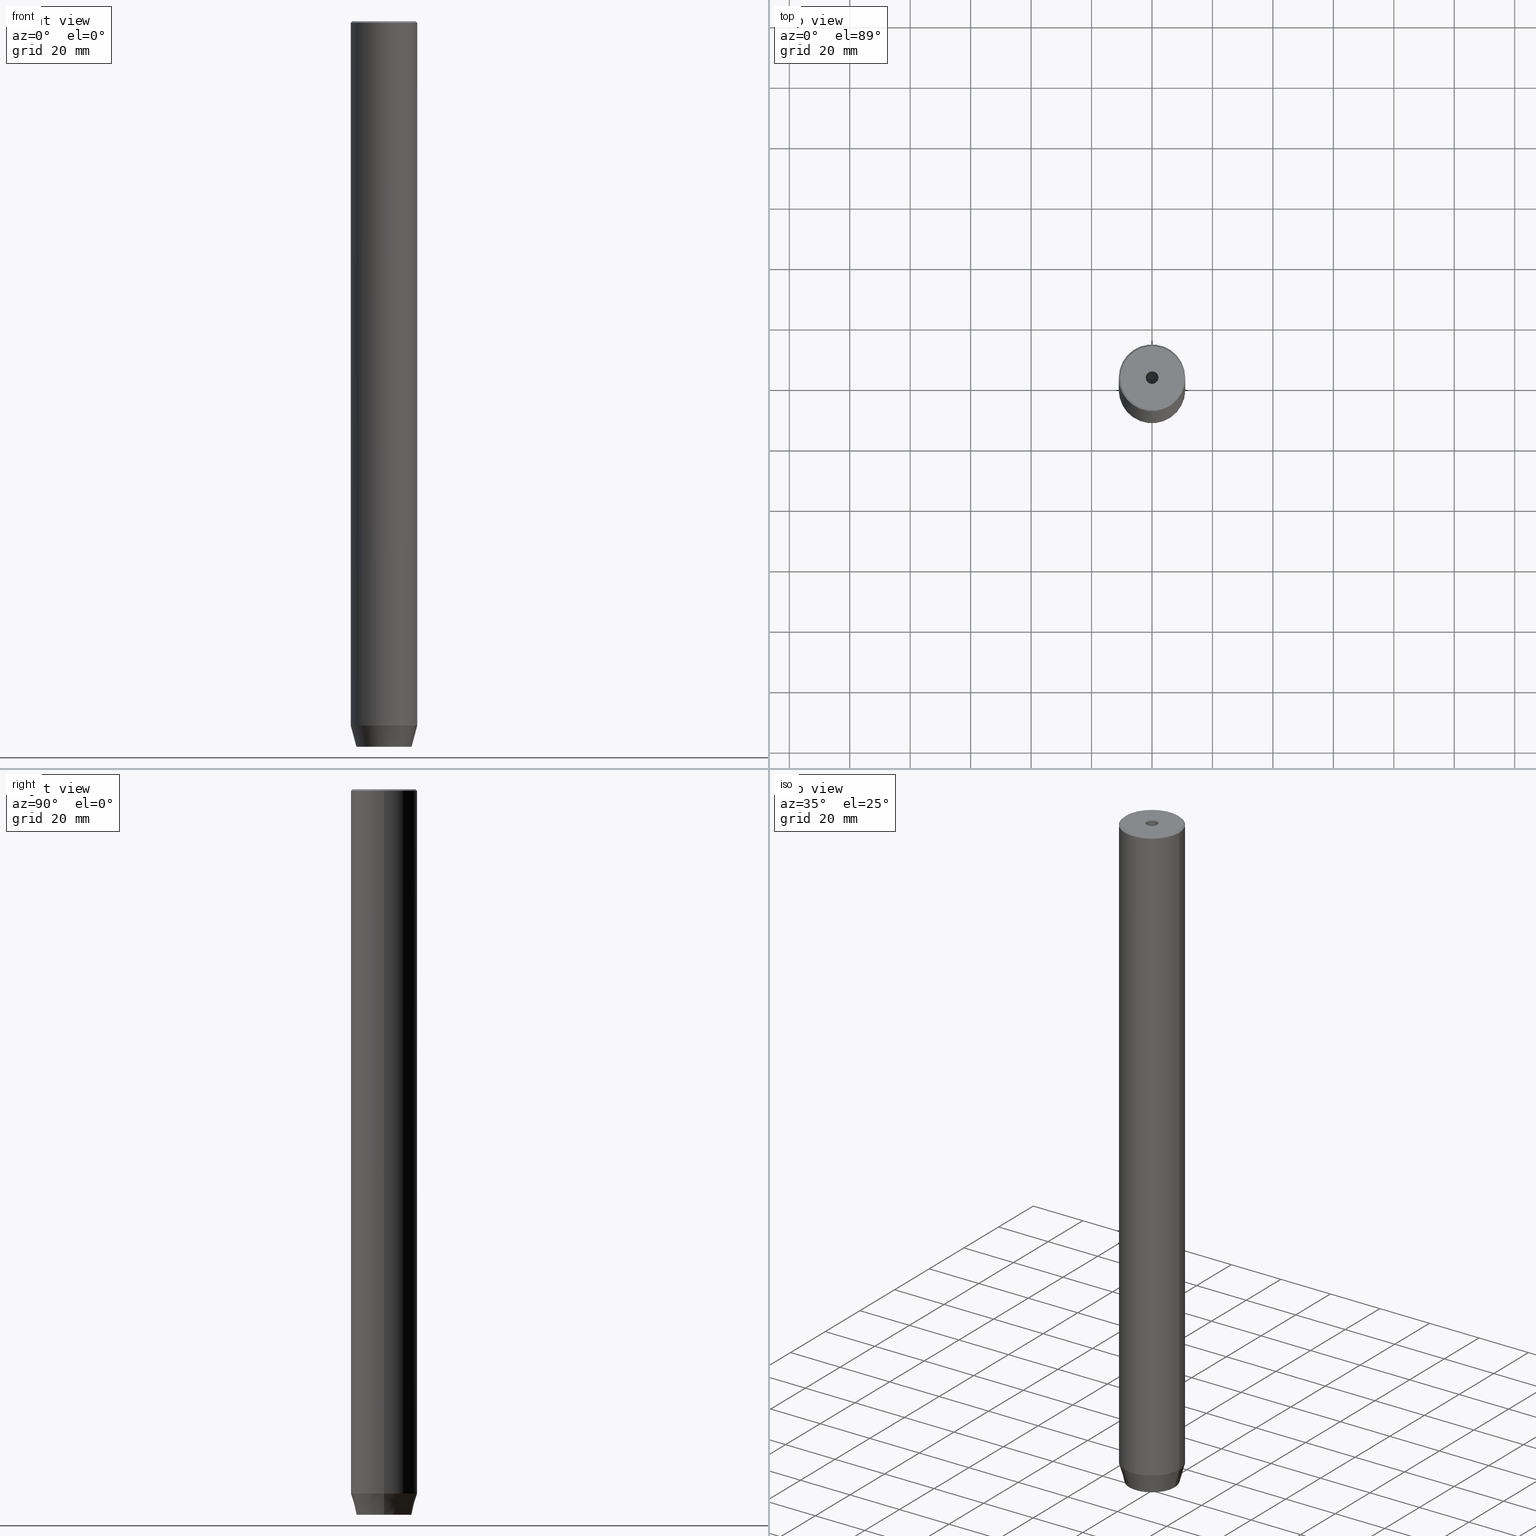
[diagram: canonical four-view strip — front | top / right | iso, engineering-drawing reading convention]
A machine part, canonical four-view strip (front | top / right | iso — engineering-drawing reading convention). The complete STEP part file that produces these views, byte-faithful:
ISO-10303-21;
HEADER;
FILE_DESCRIPTION (( 'STEP AP203' ),
    '1' );
FILE_NAME ('ee39.STEP',
    '2024-01-02T17:17:27',
    ( '' ),
    ( '' ),
    'SwSTEP 2.0',
    'SolidWorks 2019',
    '' );
FILE_SCHEMA (( 'CONFIG_CONTROL_DESIGN' ));
ENDSEC;

DATA;
#1 = FACE_OUTER_BOUND ( 'NONE', #280, .T. ) ;
#2 = CARTESIAN_POINT ( 'NONE',  ( 0.000000000000000000, 0.000000000000000000, -240.0000000000000000 ) ) ;
#3 = LINE ( 'NONE', #312, #234 ) ;
#4 = AXIS2_PLACEMENT_3D ( 'NONE', #414, #127, #131 ) ;
#5 = LINE ( 'NONE', #80, #180 ) ;
#6 = CARTESIAN_POINT ( 'NONE',  ( 0.000000000000000000, 4.618802153517006737, -237.1999999999999886 ) ) ;
#7 = EDGE_CURVE ( 'NONE', #320, #543, #432, .T. ) ;
#8 = EDGE_CURVE ( 'NONE', #197, #468, #38, .T. ) ;
#9 = ADVANCED_FACE ( 'NONE', ( #313 ), #176, .F. ) ;
#10 = LINE ( 'NONE', #188, #330 ) ;
#11 = AXIS2_PLACEMENT_3D ( 'NONE', #2, #362, #126 ) ;
#12 =( GEOMETRIC_REPRESENTATION_CONTEXT ( 3 ) GLOBAL_UNCERTAINTY_ASSIGNED_CONTEXT ( ( #85 ) ) GLOBAL_UNIT_ASSIGNED_CONTEXT ( ( #228, #77, #263 ) ) REPRESENTATION_CONTEXT ( 'NONE', 'WORKASPACE' ) );
#13 = CARTESIAN_POINT ( 'NONE',  ( -2.000000000000000888, -3.464101615137754386, -237.1999999999999886 ) ) ;
#14 = VERTEX_POINT ( 'NONE', #250 ) ;
#15 = CARTESIAN_POINT ( 'NONE',  ( -2.000000000000000000, 3.464101615137754830, -237.1999999999999886 ) ) ;
#16 = VERTEX_POINT ( 'NONE', #208 ) ;
#17 = LINE ( 'NONE', #479, #118 ) ;
#18 = VERTEX_POINT ( 'NONE', #20 ) ;
#19 = CC_DESIGN_PERSON_AND_ORGANIZATION_ASSIGNMENT ( #438, #165, ( #565 ) ) ;
#20 = CARTESIAN_POINT ( 'NONE',  ( -2.099999999999995648, 2.571758278209436040E-16, -25.00000000000000000 ) ) ;
#21 = DIRECTION ( 'NONE',  ( -0.000000000000000000, -0.000000000000000000, 1.000000000000000000 ) ) ;
#22 = ORIENTED_EDGE ( 'NONE', *, *, #441, .T. ) ;
#23 = PERSON_AND_ORGANIZATION_ROLE ( 'creator' ) ;
#24 = CARTESIAN_POINT ( 'NONE',  ( 0.000000000000000000, 0.000000000000000000, 0.000000000000000000 ) ) ;
#25 = ORIENTED_EDGE ( 'NONE', *, *, #461, .F. ) ;
#26 = DIRECTION ( 'NONE',  ( 0.000000000000000000, 0.000000000000000000, -1.000000000000000000 ) ) ;
#27 = ORIENTED_EDGE ( 'NONE', *, *, #86, .F. ) ;
#28 = VECTOR ( 'NONE', #572, 1000.000000000000000 ) ;
#29 = CIRCLE ( 'NONE', #71, 2.099999999999995648 ) ;
#30 = DIRECTION ( 'NONE',  ( 1.000000000000000000, 0.000000000000000000, 0.000000000000000000 ) ) ;
#31 = EDGE_LOOP ( 'NONE', ( #586, #349, #494, #73 ) ) ;
#32 = PLANE ( 'NONE',  #443 ) ;
#33 = ADVANCED_FACE ( 'NONE', ( #293 ), #241, .T. ) ;
#34 = CARTESIAN_POINT ( 'NONE',  ( -2.099999999999996980, 2.571758278209438013E-16, 0.000000000000000000 ) ) ;
#35 = CARTESIAN_POINT ( 'NONE',  ( -10.49999999999998224, 0.000000000000000000, 0.000000000000000000 ) ) ;
#36 = CARTESIAN_POINT ( 'NONE',  ( 4.000000000000000000, -2.309401076758502480, -237.1999999999999886 ) ) ;
#37 = EDGE_CURVE ( 'NONE', #398, #106, #205, .T. ) ;
#38 = CIRCLE ( 'NONE', #11, 9.124355652982133691 ) ;
#39 = EDGE_LOOP ( 'NONE', ( #55, #88 ) ) ;
#40 = VECTOR ( 'NONE', #271, 1000.000000000000000 ) ;
#41 = VECTOR ( 'NONE', #568, 1000.000000000000000 ) ;
#42 = DIRECTION ( 'NONE',  ( 0.000000000000000000, 0.000000000000000000, -1.000000000000000000 ) ) ;
#43 = CARTESIAN_POINT ( 'NONE',  ( 0.000000000000000000, 0.000000000000000000, 0.000000000000000000 ) ) ;
#44 = ORIENTED_EDGE ( 'NONE', *, *, #190, .T. ) ;
#45 = LINE ( 'NONE', #460, #473 ) ;
#46 = ORIENTED_EDGE ( 'NONE', *, *, #360, .T. ) ;
#47 = AXIS2_PLACEMENT_3D ( 'NONE', #87, #277, #465 ) ;
#48 = CARTESIAN_POINT ( 'NONE',  ( 0.000000000000000000, 0.000000000000000000, -237.1999999999999886 ) ) ;
#49 = DIRECTION ( 'NONE',  ( 1.000000000000000000, 0.000000000000000000, 0.000000000000000000 ) ) ;
#50 = CLOSED_SHELL ( 'NONE', ( #255, #491, #373, #58, #33, #487, #369, #314, #350, #244, #282, #128, #9, #189, #421, #501, #384, #139, #89 ) ) ;
#51 = AXIS2_PLACEMENT_3D ( 'NONE', #423, #141, #288 ) ;
#52 = EDGE_LOOP ( 'NONE', ( #446, #396, #46, #254 ) ) ;
#53 = CONICAL_SURFACE ( 'NONE', #119, 10.49999999999998224, 0.7853981633974657095 ) ;
#54 = EDGE_CURVE ( 'NONE', #338, #18, #100, .T. ) ;
#55 = ORIENTED_EDGE ( 'NONE', *, *, #469, .F. ) ;
#56 = FACE_OUTER_BOUND ( 'NONE', #57, .T. ) ;
#57 = EDGE_LOOP ( 'NONE', ( #174, #152, #110 ) ) ;
#58 = ADVANCED_FACE ( 'NONE', ( #481 ), #172, .T. ) ;
#59 = EDGE_CURVE ( 'NONE', #455, #430, #198, .T. ) ;
#60 = ORIENTED_EDGE ( 'NONE', *, *, #516, .T. ) ;
#61 = DIRECTION ( 'NONE',  ( 0.8660254037844384856, -0.5000000000000002220, 0.000000000000000000 ) ) ;
#62 = DIRECTION ( 'NONE',  ( -0.000000000000000000, -0.000000000000000000, 1.000000000000000000 ) ) ;
#63 = VERTEX_POINT ( 'NONE', #336 ) ;
#64 = LINE ( 'NONE', #437, #28 ) ;
#65 = CARTESIAN_POINT ( 'NONE',  ( -6.432287649943602629E-15, 0.000000000000000000, -26.26180729995787999 ) ) ;
#66 = EDGE_LOOP ( 'NONE', ( #143, #97, #184, #301 ) ) ;
#67 = DIRECTION ( 'NONE',  ( -0.000000000000000000, -0.000000000000000000, 1.000000000000000000 ) ) ;
#68 = CARTESIAN_POINT ( 'NONE',  ( 0.000000000000000000, 0.000000000000000000, -232.9999999999999716 ) ) ;
#69 = ORIENTED_EDGE ( 'NONE', *, *, #318, .T. ) ;
#70 = CYLINDRICAL_SURFACE ( 'NONE', #367, 2.099999999999996980 ) ;
#71 = AXIS2_PLACEMENT_3D ( 'NONE', #103, #329, #521 ) ;
#72 = LINE ( 'NONE', #206, #41 ) ;
#73 = ORIENTED_EDGE ( 'NONE', *, *, #283, .F. ) ;
#74 = LINE ( 'NONE', #215, #129 ) ;
#75 = ORIENTED_EDGE ( 'NONE', *, *, #37, .T. ) ;
#76 = CARTESIAN_POINT ( 'NONE',  ( -4.000000000000000000, 0.000000000000000000, -237.1999999999999886 ) ) ;
#77 =( NAMED_UNIT ( * ) PLANE_ANGLE_UNIT ( ) SI_UNIT ( $, .RADIAN. ) );
#78 = ORIENTED_EDGE ( 'NONE', *, *, #239, .F. ) ;
#79 = AXIS2_PLACEMENT_3D ( 'NONE', #68, #351, #30 ) ;
#80 = CARTESIAN_POINT ( 'NONE',  ( 4.000000000000000000, 2.309401076758503368, -237.1999999999999886 ) ) ;
#81 = EDGE_CURVE ( 'NONE', #571, #248, #522, .T. ) ;
#82 = ORIENTED_EDGE ( 'NONE', *, *, #478, .T. ) ;
#83 = CARTESIAN_POINT ( 'NONE',  ( -4.000000000000000000, 2.309401076758503368, -240.0000000000000000 ) ) ;
#84 = PRODUCT_RELATED_PRODUCT_CATEGORY ( 'detail', '', ( #168 ) ) ;
#85 = UNCERTAINTY_MEASURE_WITH_UNIT (LENGTH_MEASURE( 1.000000000000000082E-05 ), #228, 'distance_accuracy_value', 'NONE');
#86 = EDGE_CURVE ( 'NONE', #320, #547, #298, .T. ) ;
#87 = CARTESIAN_POINT ( 'NONE',  ( 0.000000000000000000, 0.000000000000000000, -25.00000000000000000 ) ) ;
#88 = ORIENTED_EDGE ( 'NONE', *, *, #294, .F. ) ;
#89 = ADVANCED_FACE ( 'NONE', ( #409 ), #70, .F. ) ;
#90 = AXIS2_PLACEMENT_3D ( 'NONE', #236, #270, #454 ) ;
#91 = DIRECTION ( 'NONE',  ( 0.000000000000000000, 0.000000000000000000, -1.000000000000000000 ) ) ;
#92 = EDGE_CURVE ( 'NONE', #14, #430, #64, .T. ) ;
#93 = DIRECTION ( 'NONE',  ( -0.8571673007021108903, 1.049727191138616847E-16, 0.5150380749100565980 ) ) ;
#94 = EDGE_CURVE ( 'NONE', #106, #63, #309, .T. ) ;
#95 = VECTOR ( 'NONE', #150, 1000.000000000000000 ) ;
#96 = LINE ( 'NONE', #138, #520 ) ;
#97 = ORIENTED_EDGE ( 'NONE', *, *, #466, .F. ) ;
#98 = CIRCLE ( 'NONE', #444, 2.099999999999998757 ) ;
#99 = APPROVAL_PERSON_ORGANIZATION ( #552, #252, #405 ) ;
#100 = LINE ( 'NONE', #564, #199 ) ;
#101 = LINE ( 'NONE', #291, #279 ) ;
#102 = ORIENTED_EDGE ( 'NONE', *, *, #92, .F. ) ;
#103 = CARTESIAN_POINT ( 'NONE',  ( 0.000000000000000000, 0.000000000000000000, -25.00000000000000000 ) ) ;
#104 = CARTESIAN_POINT ( 'NONE',  ( 0.000000000000000000, 0.000000000000000000, -25.00000000000000000 ) ) ;
#105 = CARTESIAN_POINT ( 'NONE',  ( 4.336808689942017736E-16, -4.618802153517006737, -240.0000000000000000 ) ) ;
#106 = VERTEX_POINT ( 'NONE', #448 ) ;
#107 = CONICAL_SURFACE ( 'NONE', #47, 2.099999999999995648, 1.029744258676651647 ) ;
#108 = PERSON_AND_ORGANIZATION ( #111, #173 ) ;
#109 = CARTESIAN_POINT ( 'NONE',  ( -10.49999999999998224, 0.000000000000000000, 0.000000000000000000 ) ) ;
#110 = ORIENTED_EDGE ( 'NONE', *, *, #213, .T. ) ;
#111 = PERSON ( 'NEUR�EN�', 'NEUR�EN�', 'NEUR�EN�', ('NEUR�EN�'), ('NEUR�EN�'), ('NEUR�EN�') ) ;
#112 = DIRECTION ( 'NONE',  ( -0.000000000000000000, -0.000000000000000000, 1.000000000000000000 ) ) ;
#113 = ORIENTED_EDGE ( 'NONE', *, *, #264, .T. ) ;
#114 = PERSON_AND_ORGANIZATION_ROLE ( 'design_owner' ) ;
#115 = CARTESIAN_POINT ( 'NONE',  ( 0.000000000000000000, 0.000000000000000000, -0.5000000000000004441 ) ) ;
#116 = ORIENTED_EDGE ( 'NONE', *, *, #516, .F. ) ;
#117 = DIRECTION ( 'NONE',  ( -0.000000000000000000, -0.000000000000000000, -1.000000000000000000 ) ) ;
#118 = VECTOR ( 'NONE', #193, 1000.000000000000000 ) ;
#119 = AXIS2_PLACEMENT_3D ( 'NONE', #553, #42, #361 ) ;
#120 = VERTEX_POINT ( 'NONE', #404 ) ;
#121 = LOCAL_TIME ( 18, 17, 27.00000000000000000, #259 ) ;
#122 = COORDINATED_UNIVERSAL_TIME_OFFSET ( 1, 0, .AHEAD. ) ;
#123 = DIRECTION ( 'NONE',  ( -0.8660254037844385966, -0.4999999999999999445, 0.000000000000000000 ) ) ;
#124 = ORIENTED_EDGE ( 'NONE', *, *, #441, .F. ) ;
#125 = CARTESIAN_POINT ( 'NONE',  ( 0.000000000000000000, 0.000000000000000000, 0.000000000000000000 ) ) ;
#126 = DIRECTION ( 'NONE',  ( 1.000000000000000000, 0.000000000000000000, 0.000000000000000000 ) ) ;
#127 = DIRECTION ( 'NONE',  ( 0.000000000000000000, 0.000000000000000000, -1.000000000000000000 ) ) ;
#128 = ADVANCED_FACE ( 'NONE', ( #581 ), #32, .F. ) ;
#129 = VECTOR ( 'NONE', #499, 1000.000000000000000 ) ;
#130 = CC_DESIGN_PERSON_AND_ORGANIZATION_ASSIGNMENT ( #434, #23, ( #462 ) ) ;
#131 = DIRECTION ( 'NONE',  ( -1.000000000000000000, 0.000000000000000000, -0.000000000000000000 ) ) ;
#132 = ORIENTED_EDGE ( 'NONE', *, *, #357, .F. ) ;
#133 = CARTESIAN_POINT ( 'NONE',  ( -4.000000000000000000, -2.309401076758503368, -237.1999999999999886 ) ) ;
#134 = DIRECTION ( 'NONE',  ( 0.2588190451025213501, 0.000000000000000000, 0.9659258262890680902 ) ) ;
#135 = AXIS2_PLACEMENT_3D ( 'NONE', #476, #286, #187 ) ;
#136 = CC_DESIGN_PERSON_AND_ORGANIZATION_ASSIGNMENT ( #391, #155, ( #565 ) ) ;
#137 = CIRCLE ( 'NONE', #322, 9.124355652982133691 ) ;
#138 = CARTESIAN_POINT ( 'NONE',  ( 2.000000000000000888, -3.464101615137754386, -237.1999999999999886 ) ) ;
#139 = ADVANCED_FACE ( 'NONE', ( #56 ), #159, .F. ) ;
#140 = DIRECTION ( 'NONE',  ( 0.5000000000000001110, 0.8660254037844385966, -0.000000000000000000 ) ) ;
#141 = DIRECTION ( 'NONE',  ( -0.000000000000000000, -0.000000000000000000, 1.000000000000000000 ) ) ;
#142 = LINE ( 'NONE', #147, #305 ) ;
#143 = ORIENTED_EDGE ( 'NONE', *, *, #182, .T. ) ;
#144 = AXIS2_PLACEMENT_3D ( 'NONE', #470, #194, #326 ) ;
#145 = VECTOR ( 'NONE', #406, 999.9999999999998863 ) ;
#146 = EDGE_CURVE ( 'NONE', #16, #566, #96, .T. ) ;
#147 = CARTESIAN_POINT ( 'NONE',  ( -11.00000000000000000, 1.347111479062088405E-15, -232.9999999999999716 ) ) ;
#148 = ORIENTED_EDGE ( 'NONE', *, *, #360, .F. ) ;
#149 = EDGE_CURVE ( 'NONE', #535, #287, #101, .T. ) ;
#150 = DIRECTION ( 'NONE',  ( -0.000000000000000000, -0.000000000000000000, -1.000000000000000000 ) ) ;
#151 = DIRECTION ( 'NONE',  ( -1.000000000000000000, 0.000000000000000000, 0.000000000000000000 ) ) ;
#152 = ORIENTED_EDGE ( 'NONE', *, *, #201, .T. ) ;
#153 = CARTESIAN_POINT ( 'NONE',  ( -11.00000000000000000, 1.347111479062088405E-15, -0.5000000000000004441 ) ) ;
#154 = CARTESIAN_POINT ( 'NONE',  ( 0.000000000000000000, 0.000000000000000000, 0.000000000000000000 ) ) ;
#155 = PERSON_AND_ORGANIZATION_ROLE ( 'design_supplier' ) ;
#156 = AXIS2_PLACEMENT_3D ( 'NONE', #567, #381, #61 ) ;
#157 = DIRECTION ( 'NONE',  ( -0.000000000000000000, -0.000000000000000000, 1.000000000000000000 ) ) ;
#158 = ORIENTED_EDGE ( 'NONE', *, *, #59, .F. ) ;
#159 = CONICAL_SURFACE ( 'NONE', #506, 2.099999999999995648, 1.029744258676651647 ) ;
#160 = CONICAL_SURFACE ( 'NONE', #467, 11.00000000000000000, 0.2617993877991500740 ) ;
#161 = PERSON_AND_ORGANIZATION ( #111, #173 ) ;
#162 = EDGE_CURVE ( 'NONE', #197, #248, #142, .T. ) ;
#163 = DIRECTION ( 'NONE',  ( -0.000000000000000000, -0.000000000000000000, 1.000000000000000000 ) ) ;
#164 = EDGE_LOOP ( 'NONE', ( #538, #113, #574, #148 ) ) ;
#165 = PERSON_AND_ORGANIZATION_ROLE ( 'creator' ) ;
#166 = LINE ( 'NONE', #435, #482 ) ;
#167 = EDGE_LOOP ( 'NONE', ( #579, #402, #116, #258 ) ) ;
#168 = PRODUCT ( 'ee39', 'ee39', '', ( #577 ) ) ;
#169 = APPROVAL_ROLE ( '' ) ;
#170 = FACE_OUTER_BOUND ( 'NONE', #31, .T. ) ;
#171 = VERTEX_POINT ( 'NONE', #247 ) ;
#172 = CONICAL_SURFACE ( 'NONE', #51, 11.00000000000000000, 0.2617993877991500740 ) ;
#173 = ORGANIZATION ( 'NEUR�EN�', 'NEUR�EN�', '' ) ;
#174 = ORIENTED_EDGE ( 'NONE', *, *, #54, .F. ) ;
#175 = PLANE ( 'NONE',  #4 ) ;
#176 = PLANE ( 'NONE',  #156 ) ;
#177 = VERTEX_POINT ( 'NONE', #379 ) ;
#178 = LINE ( 'NONE', #36, #523 ) ;
#179 = DATE_TIME_ROLE ( 'classification_date' ) ;
#180 = VECTOR ( 'NONE', #226, 1000.000000000000000 ) ;
#181 = CC_DESIGN_APPROVAL ( #334, ( #565 ) ) ;
#182 = EDGE_CURVE ( 'NONE', #63, #535, #17, .T. ) ;
#183 = PLANE ( 'NONE',  #530 ) ;
#184 = ORIENTED_EDGE ( 'NONE', *, *, #389, .F. ) ;
#185 = CALENDAR_DATE ( 2024, 2, 1 ) ;
#186 = DIRECTION ( 'NONE',  ( 0.000000000000000000, -0.000000000000000000, 1.000000000000000000 ) ) ;
#187 = DIRECTION ( 'NONE',  ( 0.8660254037844384856, 0.5000000000000002220, 0.000000000000000000 ) ) ;
#188 = CARTESIAN_POINT ( 'NONE',  ( 10.49999999999998224, 1.285879139104718661E-15, 0.000000000000000000 ) ) ;
#189 = ADVANCED_FACE ( 'NONE', ( #472 ), #382, .F. ) ;
#190 = EDGE_CURVE ( 'NONE', #566, #287, #374, .T. ) ;
#191 = AXIS2_PLACEMENT_3D ( 'NONE', #24, #578, #151 ) ;
#192 = AXIS2_PLACEMENT_3D ( 'NONE', #257, #261, #503 ) ;
#193 = DIRECTION ( 'NONE',  ( 0.000000000000000000, -1.000000000000000000, 0.000000000000000000 ) ) ;
#194 = DIRECTION ( 'NONE',  ( -0.000000000000000000, -0.000000000000000000, 1.000000000000000000 ) ) ;
#195 = DIRECTION ( 'NONE',  ( -0.8660254037844384856, 0.5000000000000002220, 0.000000000000000000 ) ) ;
#196 = ORIENTED_EDGE ( 'NONE', *, *, #469, .T. ) ;
#197 = VERTEX_POINT ( 'NONE', #561 ) ;
#198 = LINE ( 'NONE', #385, #304 ) ;
#199 = VECTOR ( 'NONE', #93, 1000.000000000000114 ) ;
#200 = VECTOR ( 'NONE', #157, 1000.000000000000000 ) ;
#201 = EDGE_CURVE ( 'NONE', #338, #216, #420, .T. ) ;
#202 = VECTOR ( 'NONE', #117, 1000.000000000000000 ) ;
#203 = EDGE_LOOP ( 'NONE', ( #262, #576, #440, #513 ) ) ;
#204 = SECURITY_CLASSIFICATION ( '', '', #341 ) ;
#205 = LINE ( 'NONE', #339, #95 ) ;
#206 = CARTESIAN_POINT ( 'NONE',  ( 2.000000000000000444, 3.464101615137754386, -237.1999999999999886 ) ) ;
#207 = ORIENTED_EDGE ( 'NONE', *, *, #81, .F. ) ;
#208 = CARTESIAN_POINT ( 'NONE',  ( 4.000000000000000000, -2.309401076758502480, -237.1999999999999886 ) ) ;
#209 = EDGE_CURVE ( 'NONE', #566, #120, #327, .T. ) ;
#210 = PERSON_AND_ORGANIZATION ( #111, #173 ) ;
#211 = CARTESIAN_POINT ( 'NONE',  ( 0.000000000000000000, 0.000000000000000000, -240.0000000000000000 ) ) ;
#212 = ORIENTED_EDGE ( 'NONE', *, *, #550, .T. ) ;
#213 = EDGE_CURVE ( 'NONE', #216, #18, #495, .T. ) ;
#214 = APPROVAL_STATUS ( 'not_yet_approved' ) ;
#215 = CARTESIAN_POINT ( 'NONE',  ( -11.00000000000000000, 1.347111479062088405E-15, 0.000000000000000000 ) ) ;
#216 = VERTEX_POINT ( 'NONE', #570 ) ;
#217 = AXIS2_PLACEMENT_3D ( 'NONE', #223, #584, #358 ) ;
#218 = EDGE_CURVE ( 'NONE', #18, #171, #449, .T. ) ;
#219 = LINE ( 'NONE', #397, #498 ) ;
#220 = ORIENTED_EDGE ( 'NONE', *, *, #7, .T. ) ;
#221 = CARTESIAN_POINT ( 'NONE',  ( -4.000000000000000000, 0.000000000000000000, -237.1999999999999886 ) ) ;
#222 = ORIENTED_EDGE ( 'NONE', *, *, #94, .T. ) ;
#223 = CARTESIAN_POINT ( 'NONE',  ( 0.000000000000000000, 0.000000000000000000, -1.990051048614449116E-16 ) ) ;
#224 = ORIENTED_EDGE ( 'NONE', *, *, #325, .F. ) ;
#225 = AXIS2_PLACEMENT_3D ( 'NONE', #115, #573, #493 ) ;
#226 = DIRECTION ( 'NONE',  ( -0.000000000000000000, -0.000000000000000000, -1.000000000000000000 ) ) ;
#227 = EDGE_LOOP ( 'NONE', ( #525, #569, #290, #132 ) ) ;
#228 =( LENGTH_UNIT ( ) NAMED_UNIT ( * ) SI_UNIT ( .MILLI., .METRE. ) );
#229 = CARTESIAN_POINT ( 'NONE',  ( 2.099999999999998757, 0.000000000000000000, -1.990051048614449116E-16 ) ) ;
#230 = CARTESIAN_POINT ( 'NONE',  ( 0.000000000000000000, 0.000000000000000000, 0.000000000000000000 ) ) ;
#231 = AXIS2_PLACEMENT_3D ( 'NONE', #43, #412, #458 ) ;
#232 = AXIS2_PLACEMENT_3D ( 'NONE', #474, #163, #296 ) ;
#233 = ORIENTED_EDGE ( 'NONE', *, *, #580, .F. ) ;
#234 = VECTOR ( 'NONE', #365, 1000.000000000000000 ) ;
#235 = LINE ( 'NONE', #76, #558 ) ;
#236 = CARTESIAN_POINT ( 'NONE',  ( 0.000000000000000000, 0.000000000000000000, 0.000000000000000000 ) ) ;
#237 = FACE_OUTER_BOUND ( 'NONE', #545, .T. ) ;
#238 = DIRECTION ( 'NONE',  ( -0.000000000000000000, -0.000000000000000000, 1.000000000000000000 ) ) ;
#239 = EDGE_CURVE ( 'NONE', #216, #459, #166, .T. ) ;
#240 = EDGE_LOOP ( 'NONE', ( #60, #328, #519, #407, #383, #364 ) ) ;
#241 = CYLINDRICAL_SURFACE ( 'NONE', #366, 11.00000000000000000 ) ;
#242 = CC_DESIGN_DATE_AND_TIME_ASSIGNMENT ( #496, #303, ( #462 ) ) ;
#243 = DIRECTION ( 'NONE',  ( -0.8660254037844384856, -0.5000000000000002220, 0.000000000000000000 ) ) ;
#244 = ADVANCED_FACE ( 'NONE', ( #170 ), #456, .T. ) ;
#245 = APPROVAL_DATE_TIME ( #442, #334 ) ;
#246 = AXIS2_PLACEMENT_3D ( 'NONE', #390, #527, #123 ) ;
#247 = CARTESIAN_POINT ( 'NONE',  ( -2.099999999999998757, 2.571758278209440478E-16, -1.990051048614449116E-16 ) ) ;
#248 = VERTEX_POINT ( 'NONE', #401 ) ;
#249 = CARTESIAN_POINT ( 'NONE',  ( 4.000000000000000000, -2.309401076758502480, -240.0000000000000000 ) ) ;
#250 = CARTESIAN_POINT ( 'NONE',  ( -4.000000000000000000, -2.309401076758503368, -240.0000000000000000 ) ) ;
#251 = DATE_AND_TIME ( #484, #342 ) ;
#252 = APPROVAL ( #509, 'NEUR�EN�' ) ;
#253 = DIRECTION ( 'NONE',  ( 1.000000000000000000, 0.000000000000000000, 0.000000000000000000 ) ) ;
#254 = ORIENTED_EDGE ( 'NONE', *, *, #283, .T. ) ;
#255 = ADVANCED_FACE ( 'NONE', ( #337 ), #268, .F. ) ;
#256 = CARTESIAN_POINT ( 'NONE',  ( 10.49999999999998224, 1.316495309083403434E-15, 0.000000000000000000 ) ) ;
#257 = CARTESIAN_POINT ( 'NONE',  ( 0.000000000000000000, 0.000000000000000000, 0.000000000000000000 ) ) ;
#258 = ORIENTED_EDGE ( 'NONE', *, *, #59, .T. ) ;
#259 = COORDINATED_UNIVERSAL_TIME_OFFSET ( 1, 0, .AHEAD. ) ;
#260 = VECTOR ( 'NONE', #284, 1000.000000000000000 ) ;
#261 = DIRECTION ( 'NONE',  ( -0.000000000000000000, -0.000000000000000000, 1.000000000000000000 ) ) ;
#262 = ORIENTED_EDGE ( 'NONE', *, *, #149, .T. ) ;
#263 =( NAMED_UNIT ( * ) SI_UNIT ( $, .STERADIAN. ) SOLID_ANGLE_UNIT ( ) );
#264 = EDGE_CURVE ( 'NONE', #248, #547, #74, .T. ) ;
#265 = DIRECTION ( 'NONE',  ( -0.000000000000000000, -0.000000000000000000, 1.000000000000000000 ) ) ;
#266 = ORIENTED_EDGE ( 'NONE', *, *, #213, .F. ) ;
#267 = EDGE_CURVE ( 'NONE', #398, #274, #72, .T. ) ;
#268 = CYLINDRICAL_SURFACE ( 'NONE', #192, 2.099999999999996980 ) ;
#269 = EDGE_LOOP ( 'NONE', ( #25, #102, #124, #486, #500, #475 ) ) ;
#270 = DIRECTION ( 'NONE',  ( 0.000000000000000000, 0.000000000000000000, 1.000000000000000000 ) ) ;
#271 = DIRECTION ( 'NONE',  ( -0.7071067811865597852, 0.000000000000000000, -0.7071067811865352493 ) ) ;
#272 = CALENDAR_DATE ( 2024, 2, 1 ) ;
#273 = CARTESIAN_POINT ( 'NONE',  ( -4.000000000000000000, 2.309401076758503368, -237.1999999999999886 ) ) ;
#274 = VERTEX_POINT ( 'NONE', #354 ) ;
#275 = DIRECTION ( 'NONE',  ( -0.000000000000000000, 0.000000000000000000, -1.000000000000000000 ) ) ;
#276 = CARTESIAN_POINT ( 'NONE',  ( 9.124355652982133691, 0.000000000000000000, -240.0000000000000000 ) ) ;
#277 = DIRECTION ( 'NONE',  ( -0.000000000000000000, -0.000000000000000000, 1.000000000000000000 ) ) ;
#278 = DESIGN_CONTEXT ( 'detailed design', #471, 'design' ) ;
#279 = VECTOR ( 'NONE', #289, 1000.000000000000114 ) ;
#280 = EDGE_LOOP ( 'NONE', ( #311, #585 ) ) ;
#281 = VECTOR ( 'NONE', #452, 1000.000000000000114 ) ;
#282 = ADVANCED_FACE ( 'NONE', ( #544 ), #343, .F. ) ;
#283 = EDGE_CURVE ( 'NONE', #177, #547, #582, .T. ) ;
#284 = DIRECTION ( 'NONE',  ( -0.000000000000000000, -0.000000000000000000, -1.000000000000000000 ) ) ;
#285 = CIRCLE ( 'NONE', #408, 10.49999999999998224 ) ;
#286 = DIRECTION ( 'NONE',  ( 0.5000000000000003331, -0.8660254037844385966, 0.000000000000000000 ) ) ;
#287 = VERTEX_POINT ( 'NONE', #105 ) ;
#288 = DIRECTION ( 'NONE',  ( 1.000000000000000000, 0.000000000000000000, 0.000000000000000000 ) ) ;
#289 = DIRECTION ( 'NONE',  ( -0.8660254037844384856, -0.5000000000000002220, 0.000000000000000000 ) ) ;
#290 = ORIENTED_EDGE ( 'NONE', *, *, #451, .T. ) ;
#291 = CARTESIAN_POINT ( 'NONE',  ( 2.000000000000000888, -3.464101615137754386, -240.0000000000000000 ) ) ;
#292 = ORIENTED_EDGE ( 'NONE', *, *, #162, .T. ) ;
#293 = FACE_OUTER_BOUND ( 'NONE', #164, .T. ) ;
#294 = EDGE_CURVE ( 'NONE', #171, #459, #98, .T. ) ;
#295 = CIRCLE ( 'NONE', #79, 11.00000000000000000 ) ;
#296 = DIRECTION ( 'NONE',  ( 1.000000000000000000, 0.000000000000000000, 0.000000000000000000 ) ) ;
#297 = ORIENTED_EDGE ( 'NONE', *, *, #478, .F. ) ;
#298 = LINE ( 'NONE', #35, #40 ) ;
#299 = PERSON_AND_ORGANIZATION_ROLE ( 'classification_officer' ) ;
#300 = DIRECTION ( 'NONE',  ( 1.000000000000000000, 0.000000000000000000, 0.000000000000000000 ) ) ;
#301 = ORIENTED_EDGE ( 'NONE', *, *, #418, .T. ) ;
#302 = DIRECTION ( 'NONE',  ( 1.000000000000000000, 0.000000000000000000, 0.000000000000000000 ) ) ;
#303 = DATE_TIME_ROLE ( 'creation_date' ) ;
#304 = VECTOR ( 'NONE', #526, 1000.000000000000000 ) ;
#305 = VECTOR ( 'NONE', #378, 1000.000000000000000 ) ;
#306 = FACE_OUTER_BOUND ( 'NONE', #335, .T. ) ;
#307 = AXIS2_PLACEMENT_3D ( 'NONE', #537, #26, #300 ) ;
#308 = LOCAL_TIME ( 18, 17, 27.00000000000000000, #464 ) ;
#309 = LINE ( 'NONE', #346, #422 ) ;
#310 = DIRECTION ( 'NONE',  ( 1.000000000000000000, 0.000000000000000000, 0.000000000000000000 ) ) ;
#311 = ORIENTED_EDGE ( 'NONE', *, *, #318, .F. ) ;
#312 = CARTESIAN_POINT ( 'NONE',  ( 4.000000000000000000, 0.000000000000000000, -237.1999999999999886 ) ) ;
#313 = FACE_OUTER_BOUND ( 'NONE', #554, .T. ) ;
#314 = ADVANCED_FACE ( 'NONE', ( #485 ), #439, .T. ) ;
#315 = DIRECTION ( 'NONE',  ( 1.000000000000000000, 0.000000000000000000, 0.000000000000000000 ) ) ;
#316 = EDGE_LOOP ( 'NONE', ( #388, #158, #359, #426 ) ) ;
#317 = CARTESIAN_POINT ( 'NONE',  ( 4.000000000000000000, 0.000000000000000000, -237.1999999999999886 ) ) ;
#318 = EDGE_CURVE ( 'NONE', #468, #197, #137, .T. ) ;
#319 = DIRECTION ( 'NONE',  ( 1.000000000000000000, 0.000000000000000000, 0.000000000000000000 ) ) ;
#320 = VERTEX_POINT ( 'NONE', #109 ) ;
#321 = PLANE ( 'NONE',  #483 ) ;
#322 = AXIS2_PLACEMENT_3D ( 'NONE', #211, #392, #534 ) ;
#323 = LOCAL_TIME ( 18, 17, 27.00000000000000000, #122 ) ;
#324 = DIRECTION ( 'NONE',  ( -0.8660254037844385966, 0.5000000000000001110, 0.000000000000000000 ) ) ;
#325 = EDGE_CURVE ( 'NONE', #547, #177, #416, .T. ) ;
#326 = DIRECTION ( 'NONE',  ( 1.000000000000000000, 0.000000000000000000, 0.000000000000000000 ) ) ;
#327 = LINE ( 'NONE', #13, #415 ) ;
#328 = ORIENTED_EDGE ( 'NONE', *, *, #267, .T. ) ;
#329 = DIRECTION ( 'NONE',  ( -0.000000000000000000, -0.000000000000000000, 1.000000000000000000 ) ) ;
#330 = VECTOR ( 'NONE', #492, 1000.000000000000000 ) ;
#331 = CIRCLE ( 'NONE', #217, 2.099999999999998757 ) ;
#332 = APPROVAL_PERSON_ORGANIZATION ( #210, #334, #347 ) ;
#333 = DIRECTION ( 'NONE',  ( 0.000000000000000000, 0.000000000000000000, 1.000000000000000000 ) ) ;
#334 = APPROVAL ( #214, 'NEUR�EN�' ) ;
#335 = EDGE_LOOP ( 'NONE', ( #220, #82 ) ) ;
#336 = CARTESIAN_POINT ( 'NONE',  ( 4.000000000000000000, 2.309401076758503368, -240.0000000000000000 ) ) ;
#337 = FACE_OUTER_BOUND ( 'NONE', #453, .T. ) ;
#338 = VERTEX_POINT ( 'NONE', #65 ) ;
#339 = CARTESIAN_POINT ( 'NONE',  ( 0.000000000000000000, 4.618802153517006737, -237.1999999999999886 ) ) ;
#340 = APPLICATION_CONTEXT ( 'configuration controlled 3d designs of mechanical parts and assemblies' ) ;
#341 = SECURITY_CLASSIFICATION_LEVEL ( 'unclassified' ) ;
#342 = LOCAL_TIME ( 18, 17, 27.00000000000000000, #353 ) ;
#343 = PLANE ( 'NONE',  #246 ) ;
#344 = EDGE_LOOP ( 'NONE', ( #297, #371, #224, #27 ) ) ;
#345 = PRODUCT_DEFINITION_SHAPE ( 'NONE', 'NONE',  #462 ) ;
#346 = CARTESIAN_POINT ( 'NONE',  ( 2.000000000000000444, 3.464101615137754386, -240.0000000000000000 ) ) ;
#347 = APPROVAL_ROLE ( '' ) ;
#348 = CARTESIAN_POINT ( 'NONE',  ( 0.000000000000000000, 0.000000000000000000, -232.9999999999999716 ) ) ;
#349 = ORIENTED_EDGE ( 'NONE', *, *, #7, .F. ) ;
#350 = ADVANCED_FACE ( 'NONE', ( #395 ), #160, .T. ) ;
#351 = DIRECTION ( 'NONE',  ( -0.000000000000000000, -0.000000000000000000, 1.000000000000000000 ) ) ;
#352 = ORIENTED_EDGE ( 'NONE', *, *, #209, .F. ) ;
#353 = COORDINATED_UNIVERSAL_TIME_OFFSET ( 1, 0, .AHEAD. ) ;
#354 = CARTESIAN_POINT ( 'NONE',  ( 4.000000000000000000, 2.309401076758503368, -237.1999999999999886 ) ) ;
#355 = EDGE_LOOP ( 'NONE', ( #69, #292, #207, #490 ) ) ;
#356 = COORDINATED_UNIVERSAL_TIME_OFFSET ( 1, 0, .AHEAD. ) ;
#357 = EDGE_CURVE ( 'NONE', #248, #571, #295, .T. ) ;
#358 = DIRECTION ( 'NONE',  ( 1.000000000000000000, 0.000000000000000000, 0.000000000000000000 ) ) ;
#359 = ORIENTED_EDGE ( 'NONE', *, *, #429, .F. ) ;
#360 = EDGE_CURVE ( 'NONE', #571, #177, #219, .T. ) ;
#361 = DIRECTION ( 'NONE',  ( -1.000000000000000000, 0.000000000000000000, 0.000000000000000000 ) ) ;
#362 = DIRECTION ( 'NONE',  ( -0.000000000000000000, -0.000000000000000000, 1.000000000000000000 ) ) ;
#363 = LINE ( 'NONE', #133, #202 ) ;
#364 = ORIENTED_EDGE ( 'NONE', *, *, #429, .T. ) ;
#365 = DIRECTION ( 'NONE',  ( 0.000000000000000000, -1.000000000000000000, 0.000000000000000000 ) ) ;
#366 = AXIS2_PLACEMENT_3D ( 'NONE', #154, #238, #49 ) ;
#367 = AXIS2_PLACEMENT_3D ( 'NONE', #400, #67, #529 ) ;
#368 = AXIS2_PLACEMENT_3D ( 'NONE', #125, #186, #315 ) ;
#369 = ADVANCED_FACE ( 'NONE', ( #540, #306 ), #457, .T. ) ;
#370 = FACE_BOUND ( 'NONE', #269, .T. ) ;
#371 = ORIENTED_EDGE ( 'NONE', *, *, #532, .T. ) ;
#372 = DIRECTION ( 'NONE',  ( 0.000000000000000000, 1.000000000000000000, 0.000000000000000000 ) ) ;
#373 = ADVANCED_FACE ( 'NONE', ( #514 ), #53, .T. ) ;
#374 = LINE ( 'NONE', #557, #260 ) ;
#375 = VECTOR ( 'NONE', #425, 1000.000000000000114 ) ;
#376 = AXIS2_PLACEMENT_3D ( 'NONE', #377, #140, #324 ) ;
#377 = CARTESIAN_POINT ( 'NONE',  ( 2.000000000000000444, 3.464101615137754386, -237.1999999999999886 ) ) ;
#378 = DIRECTION ( 'NONE',  ( -0.2588190451025213501, 3.169619151431772337E-17, 0.9659258262890680902 ) ) ;
#379 = CARTESIAN_POINT ( 'NONE',  ( 11.00000000000000000, 0.000000000000000000, -0.5000000000000004441 ) ) ;
#380 = ORIENTED_EDGE ( 'NONE', *, *, #218, .F. ) ;
#381 = DIRECTION ( 'NONE',  ( -0.5000000000000003331, -0.8660254037844385966, 0.000000000000000000 ) ) ;
#382 = PLANE ( 'NONE',  #135 ) ;
#383 = ORIENTED_EDGE ( 'NONE', *, *, #209, .T. ) ;
#384 = ADVANCED_FACE ( 'NONE', ( #419 ), #321, .T. ) ;
#385 = CARTESIAN_POINT ( 'NONE',  ( -4.000000000000000000, 2.309401076758503368, -237.1999999999999886 ) ) ;
#386 = VECTOR ( 'NONE', #563, 999.9999999999998863 ) ;
#387 = CC_DESIGN_DATE_AND_TIME_ASSIGNMENT ( #450, #179, ( #204 ) ) ;
#388 = ORIENTED_EDGE ( 'NONE', *, *, #92, .T. ) ;
#389 = EDGE_CURVE ( 'NONE', #274, #16, #3, .T. ) ;
#390 = CARTESIAN_POINT ( 'NONE',  ( -2.000000000000000000, 3.464101615137754830, -237.1999999999999886 ) ) ;
#391 = PERSON_AND_ORGANIZATION ( #111, #173 ) ;
#392 = DIRECTION ( 'NONE',  ( -0.000000000000000000, -0.000000000000000000, 1.000000000000000000 ) ) ;
#393 = EDGE_LOOP ( 'NONE', ( #480, #528, #212 ) ) ;
#394 = APPROVAL_DATE_TIME ( #251, #497 ) ;
#395 = FACE_OUTER_BOUND ( 'NONE', #227, .T. ) ;
#396 = ORIENTED_EDGE ( 'NONE', *, *, #357, .T. ) ;
#397 = CARTESIAN_POINT ( 'NONE',  ( 11.00000000000000000, 0.000000000000000000, 0.000000000000000000 ) ) ;
#398 = VERTEX_POINT ( 'NONE', #6 ) ;
#399 = APPLICATION_PROTOCOL_DEFINITION ( 'international standard', 'config_control_design', 1994, #340 ) ;
#400 = CARTESIAN_POINT ( 'NONE',  ( 0.000000000000000000, 0.000000000000000000, 0.000000000000000000 ) ) ;
#401 = CARTESIAN_POINT ( 'NONE',  ( -11.00000000000000000, 1.347111479062088405E-15, -232.9999999999999716 ) ) ;
#402 = ORIENTED_EDGE ( 'NONE', *, *, #37, .F. ) ;
#403 = CARTESIAN_POINT ( 'NONE',  ( 4.336808689942017736E-16, -4.618802153517006737, -237.1999999999999886 ) ) ;
#404 = CARTESIAN_POINT ( 'NONE',  ( -4.000000000000000000, -2.309401076758503368, -237.1999999999999886 ) ) ;
#405 = APPROVAL_ROLE ( '' ) ;
#406 = DIRECTION ( 'NONE',  ( 0.8660254037844387076, 0.5000000000000001110, 0.000000000000000000 ) ) ;
#407 = ORIENTED_EDGE ( 'NONE', *, *, #146, .T. ) ;
#408 = AXIS2_PLACEMENT_3D ( 'NONE', #230, #546, #319 ) ;
#409 = FACE_OUTER_BOUND ( 'NONE', #417, .T. ) ;
#410 = DATE_AND_TIME ( #272, #583 ) ;
#411 = CARTESIAN_POINT ( 'NONE',  ( -2.000000000000000000, 3.464101615137754830, -240.0000000000000000 ) ) ;
#412 = DIRECTION ( 'NONE',  ( -0.000000000000000000, -0.000000000000000000, 1.000000000000000000 ) ) ;
#413 = FACE_OUTER_BOUND ( 'NONE', #66, .T. ) ;
#414 = CARTESIAN_POINT ( 'NONE',  ( 0.000000000000000000, 9.124355652982133691, -240.0000000000000000 ) ) ;
#415 = VECTOR ( 'NONE', #195, 1000.000000000000114 ) ;
#416 = CIRCLE ( 'NONE', #307, 11.00000000000000000 ) ;
#417 = EDGE_LOOP ( 'NONE', ( #380, #266, #562, #196 ) ) ;
#418 = EDGE_CURVE ( 'NONE', #274, #63, #5, .T. ) ;
#419 = FACE_OUTER_BOUND ( 'NONE', #240, .T. ) ;
#420 = LINE ( 'NONE', #560, #375 ) ;
#421 = ADVANCED_FACE ( 'NONE', ( #413 ), #183, .F. ) ;
#422 = VECTOR ( 'NONE', #539, 1000.000000000000000 ) ;
#423 = CARTESIAN_POINT ( 'NONE',  ( 0.000000000000000000, 0.000000000000000000, -232.9999999999999716 ) ) ;
#424 = CC_DESIGN_APPROVAL ( #497, ( #462 ) ) ;
#425 = DIRECTION ( 'NONE',  ( 0.8571673007021108903, 0.000000000000000000, 0.5150380749100565980 ) ) ;
#426 = ORIENTED_EDGE ( 'NONE', *, *, #580, .T. ) ;
#427 = PERSON_AND_ORGANIZATION ( #111, #173 ) ;
#428 = CC_DESIGN_PERSON_AND_ORGANIZATION_ASSIGNMENT ( #427, #114, ( #168 ) ) ;
#429 = EDGE_CURVE ( 'NONE', #120, #455, #235, .T. ) ;
#430 = VERTEX_POINT ( 'NONE', #83 ) ;
#431 = ADVANCED_BREP_SHAPE_REPRESENTATION ( 'ee39', ( #533, #90 ), #12 ) ;
#432 = CIRCLE ( 'NONE', #231, 10.49999999999998224 ) ;
#433 = DIRECTION ( 'NONE',  ( -1.000000000000000000, 0.000000000000000000, 0.000000000000000000 ) ) ;
#434 = PERSON_AND_ORGANIZATION ( #111, #173 ) ;
#435 = CARTESIAN_POINT ( 'NONE',  ( 2.099999999999996980, 0.000000000000000000, 0.000000000000000000 ) ) ;
#436 = ORIENTED_EDGE ( 'NONE', *, *, #418, .F. ) ;
#437 = CARTESIAN_POINT ( 'NONE',  ( -4.000000000000000000, 0.000000000000000000, -240.0000000000000000 ) ) ;
#438 = PERSON_AND_ORGANIZATION ( #111, #173 ) ;
#439 = CYLINDRICAL_SURFACE ( 'NONE', #508, 11.00000000000000000 ) ;
#440 = ORIENTED_EDGE ( 'NONE', *, *, #146, .F. ) ;
#441 = EDGE_CURVE ( 'NONE', #287, #14, #549, .T. ) ;
#442 = DATE_AND_TIME ( #502, #121 ) ;
#443 = AXIS2_PLACEMENT_3D ( 'NONE', #221, #433, #333 ) ;
#444 = AXIS2_PLACEMENT_3D ( 'NONE', #489, #265, #310 ) ;
#445 = CARTESIAN_POINT ( 'NONE',  ( 0.000000000000000000, 0.000000000000000000, 0.000000000000000000 ) ) ;
#446 = ORIENTED_EDGE ( 'NONE', *, *, #264, .F. ) ;
#447 = CC_DESIGN_SECURITY_CLASSIFICATION ( #204, ( #565 ) ) ;
#448 = CARTESIAN_POINT ( 'NONE',  ( 2.168404344971008868E-16, 4.618802153517006737, -240.0000000000000000 ) ) ;
#449 = LINE ( 'NONE', #34, #200 ) ;
#450 = DATE_AND_TIME ( #185, #308 ) ;
#451 = EDGE_CURVE ( 'NONE', #468, #571, #45, .T. ) ;
#452 = DIRECTION ( 'NONE',  ( -0.8660254037844384856, 0.5000000000000002220, 0.000000000000000000 ) ) ;
#453 = EDGE_LOOP ( 'NONE', ( #477, #541, #504, #78 ) ) ;
#454 = DIRECTION ( 'NONE',  ( 1.000000000000000000, 0.000000000000000000, 0.000000000000000000 ) ) ;
#455 = VERTEX_POINT ( 'NONE', #273 ) ;
#456 = CONICAL_SURFACE ( 'NONE', #191, 10.49999999999998224, 0.7853981633974657095 ) ;
#457 = PLANE ( 'NONE',  #368 ) ;
#458 = DIRECTION ( 'NONE',  ( 1.000000000000000000, 0.000000000000000000, 0.000000000000000000 ) ) ;
#459 = VERTEX_POINT ( 'NONE', #229 ) ;
#460 = CARTESIAN_POINT ( 'NONE',  ( 11.00000000000000000, 0.000000000000000000, -232.9999999999999716 ) ) ;
#461 = EDGE_CURVE ( 'NONE', #430, #106, #463, .T. ) ;
#462 = PRODUCT_DEFINITION ( 'NEZN�M�', '', #565, #278 ) ;
#463 = LINE ( 'NONE', #411, #145 ) ;
#464 = COORDINATED_UNIVERSAL_TIME_OFFSET ( 1, 0, .AHEAD. ) ;
#465 = DIRECTION ( 'NONE',  ( 1.000000000000000000, 0.000000000000000000, 0.000000000000000000 ) ) ;
#466 = EDGE_CURVE ( 'NONE', #16, #535, #178, .T. ) ;
#467 = AXIS2_PLACEMENT_3D ( 'NONE', #348, #112, #302 ) ;
#468 = VERTEX_POINT ( 'NONE', #276 ) ;
#469 = EDGE_CURVE ( 'NONE', #459, #171, #331, .T. ) ;
#470 = CARTESIAN_POINT ( 'NONE',  ( 0.000000000000000000, 0.000000000000000000, -232.9999999999999716 ) ) ;
#471 = APPLICATION_CONTEXT ( 'configuration controlled 3d designs of mechanical parts and assemblies' ) ;
#472 = FACE_OUTER_BOUND ( 'NONE', #203, .T. ) ;
#473 = VECTOR ( 'NONE', #134, 1000.000000000000000 ) ;
#474 = CARTESIAN_POINT ( 'NONE',  ( 0.000000000000000000, 0.000000000000000000, -25.00000000000000000 ) ) ;
#475 = ORIENTED_EDGE ( 'NONE', *, *, #94, .F. ) ;
#476 = CARTESIAN_POINT ( 'NONE',  ( 2.000000000000000888, -3.464101615137754386, -237.1999999999999886 ) ) ;
#477 = ORIENTED_EDGE ( 'NONE', *, *, #550, .F. ) ;
#478 = EDGE_CURVE ( 'NONE', #543, #320, #285, .T. ) ;
#479 = CARTESIAN_POINT ( 'NONE',  ( 4.000000000000000000, 0.000000000000000000, -240.0000000000000000 ) ) ;
#480 = ORIENTED_EDGE ( 'NONE', *, *, #201, .F. ) ;
#481 = FACE_OUTER_BOUND ( 'NONE', #355, .T. ) ;
#482 = VECTOR ( 'NONE', #21, 1000.000000000000000 ) ;
#483 = AXIS2_PLACEMENT_3D ( 'NONE', #48, #91, #507 ) ;
#484 = CALENDAR_DATE ( 2024, 2, 1 ) ;
#485 = FACE_OUTER_BOUND ( 'NONE', #52, .T. ) ;
#486 = ORIENTED_EDGE ( 'NONE', *, *, #149, .F. ) ;
#487 = ADVANCED_FACE ( 'NONE', ( #370, #1 ), #175, .T. ) ;
#488 = APPROVAL_STATUS ( 'not_yet_approved' ) ;
#489 = CARTESIAN_POINT ( 'NONE',  ( 0.000000000000000000, 0.000000000000000000, -1.990051048614449116E-16 ) ) ;
#490 = ORIENTED_EDGE ( 'NONE', *, *, #451, .F. ) ;
#491 = ADVANCED_FACE ( 'NONE', ( #512 ), #107, .F. ) ;
#492 = DIRECTION ( 'NONE',  ( 0.7071067811865597852, 8.659560562355083235E-17, -0.7071067811865352493 ) ) ;
#493 = DIRECTION ( 'NONE',  ( 1.000000000000000000, 0.000000000000000000, 0.000000000000000000 ) ) ;
#494 = ORIENTED_EDGE ( 'NONE', *, *, #86, .T. ) ;
#495 = CIRCLE ( 'NONE', #232, 2.099999999999995648 ) ;
#496 = DATE_AND_TIME ( #531, #323 ) ;
#497 = APPROVAL ( #488, 'NEUR�EN�' ) ;
#498 = VECTOR ( 'NONE', #575, 1000.000000000000000 ) ;
#499 = DIRECTION ( 'NONE',  ( -0.000000000000000000, -0.000000000000000000, 1.000000000000000000 ) ) ;
#500 = ORIENTED_EDGE ( 'NONE', *, *, #182, .F. ) ;
#501 = ADVANCED_FACE ( 'NONE', ( #237 ), #556, .F. ) ;
#502 = CALENDAR_DATE ( 2024, 2, 1 ) ;
#503 = DIRECTION ( 'NONE',  ( 1.000000000000000000, 0.000000000000000000, 0.000000000000000000 ) ) ;
#504 = ORIENTED_EDGE ( 'NONE', *, *, #294, .T. ) ;
#505 = ORIENTED_EDGE ( 'NONE', *, *, #267, .F. ) ;
#506 = AXIS2_PLACEMENT_3D ( 'NONE', #104, #518, #524 ) ;
#507 = DIRECTION ( 'NONE',  ( -1.000000000000000000, 0.000000000000000000, -0.000000000000000000 ) ) ;
#508 = AXIS2_PLACEMENT_3D ( 'NONE', #445, #62, #253 ) ;
#509 = APPROVAL_STATUS ( 'not_yet_approved' ) ;
#510 = CC_DESIGN_PERSON_AND_ORGANIZATION_ASSIGNMENT ( #108, #299, ( #204 ) ) ;
#511 = DIRECTION ( 'NONE',  ( 1.000000000000000000, 0.000000000000000000, -0.000000000000000000 ) ) ;
#512 = FACE_OUTER_BOUND ( 'NONE', #393, .T. ) ;
#513 = ORIENTED_EDGE ( 'NONE', *, *, #466, .T. ) ;
#514 = FACE_OUTER_BOUND ( 'NONE', #344, .T. ) ;
#515 = APPROVAL_PERSON_ORGANIZATION ( #161, #497, #169 ) ;
#516 = EDGE_CURVE ( 'NONE', #455, #398, #517, .T. ) ;
#517 = LINE ( 'NONE', #15, #386 ) ;
#518 = DIRECTION ( 'NONE',  ( -0.000000000000000000, -0.000000000000000000, 1.000000000000000000 ) ) ;
#519 = ORIENTED_EDGE ( 'NONE', *, *, #389, .T. ) ;
#520 = VECTOR ( 'NONE', #243, 1000.000000000000114 ) ;
#521 = DIRECTION ( 'NONE',  ( 1.000000000000000000, 0.000000000000000000, 0.000000000000000000 ) ) ;
#522 = CIRCLE ( 'NONE', #144, 11.00000000000000000 ) ;
#523 = VECTOR ( 'NONE', #551, 1000.000000000000000 ) ;
#524 = DIRECTION ( 'NONE',  ( 1.000000000000000000, 0.000000000000000000, 0.000000000000000000 ) ) ;
#525 = ORIENTED_EDGE ( 'NONE', *, *, #162, .F. ) ;
#526 = DIRECTION ( 'NONE',  ( -0.000000000000000000, -0.000000000000000000, -1.000000000000000000 ) ) ;
#527 = DIRECTION ( 'NONE',  ( -0.5000000000000000000, 0.8660254037844387076, 0.000000000000000000 ) ) ;
#528 = ORIENTED_EDGE ( 'NONE', *, *, #54, .T. ) ;
#529 = DIRECTION ( 'NONE',  ( 1.000000000000000000, 0.000000000000000000, 0.000000000000000000 ) ) ;
#530 = AXIS2_PLACEMENT_3D ( 'NONE', #317, #511, #275 ) ;
#531 = CALENDAR_DATE ( 2024, 2, 1 ) ;
#532 = EDGE_CURVE ( 'NONE', #543, #177, #10, .T. ) ;
#533 = MANIFOLD_SOLID_BREP ( 'Vrt�k z�vitn�ku pro M5 z�vit1', #50 ) ;
#534 = DIRECTION ( 'NONE',  ( 1.000000000000000000, 0.000000000000000000, 0.000000000000000000 ) ) ;
#535 = VERTEX_POINT ( 'NONE', #249 ) ;
#536 = APPLICATION_PROTOCOL_DEFINITION ( 'international standard', 'config_control_design', 1994, #471 ) ;
#537 = CARTESIAN_POINT ( 'NONE',  ( 0.000000000000000000, 0.000000000000000000, -0.5000000000000004441 ) ) ;
#538 = ORIENTED_EDGE ( 'NONE', *, *, #81, .T. ) ;
#539 = DIRECTION ( 'NONE',  ( 0.8660254037844385966, -0.5000000000000001110, 0.000000000000000000 ) ) ;
#540 = FACE_BOUND ( 'NONE', #39, .T. ) ;
#541 = ORIENTED_EDGE ( 'NONE', *, *, #218, .T. ) ;
#542 = CARTESIAN_POINT ( 'NONE',  ( 11.00000000000000000, 0.000000000000000000, -232.9999999999999716 ) ) ;
#543 = VERTEX_POINT ( 'NONE', #256 ) ;
#544 = FACE_OUTER_BOUND ( 'NONE', #167, .T. ) ;
#545 = EDGE_LOOP ( 'NONE', ( #222, #436, #505, #75 ) ) ;
#546 = DIRECTION ( 'NONE',  ( -0.000000000000000000, -0.000000000000000000, 1.000000000000000000 ) ) ;
#547 = VERTEX_POINT ( 'NONE', #153 ) ;
#548 = SHAPE_DEFINITION_REPRESENTATION ( #345, #431 ) ;
#549 = LINE ( 'NONE', #555, #281 ) ;
#550 = EDGE_CURVE ( 'NONE', #18, #216, #29, .T. ) ;
#551 = DIRECTION ( 'NONE',  ( -0.000000000000000000, -0.000000000000000000, -1.000000000000000000 ) ) ;
#552 = PERSON_AND_ORGANIZATION ( #111, #173 ) ;
#553 = CARTESIAN_POINT ( 'NONE',  ( 0.000000000000000000, 0.000000000000000000, 0.000000000000000000 ) ) ;
#554 = EDGE_LOOP ( 'NONE', ( #22, #233, #352, #44 ) ) ;
#555 = CARTESIAN_POINT ( 'NONE',  ( -2.000000000000000888, -3.464101615137754386, -240.0000000000000000 ) ) ;
#556 = PLANE ( 'NONE',  #376 ) ;
#557 = CARTESIAN_POINT ( 'NONE',  ( 4.336808689942017736E-16, -4.618802153517006737, -237.1999999999999886 ) ) ;
#558 = VECTOR ( 'NONE', #372, 1000.000000000000000 ) ;
#559 = CC_DESIGN_APPROVAL ( #252, ( #204 ) ) ;
#560 = CARTESIAN_POINT ( 'NONE',  ( 2.099999999999995648, 0.000000000000000000, -25.00000000000000000 ) ) ;
#561 = CARTESIAN_POINT ( 'NONE',  ( -9.124355652982133691, 1.232261386766375507E-15, -240.0000000000000000 ) ) ;
#562 = ORIENTED_EDGE ( 'NONE', *, *, #239, .T. ) ;
#563 = DIRECTION ( 'NONE',  ( 0.8660254037844387076, 0.5000000000000001110, 0.000000000000000000 ) ) ;
#564 = CARTESIAN_POINT ( 'NONE',  ( -2.099999999999995648, 2.571758278209436040E-16, -25.00000000000000000 ) ) ;
#565 = PRODUCT_DEFINITION_FORMATION_WITH_SPECIFIED_SOURCE ( 'LIBOVOLN�', '', #168, .NOT_KNOWN. ) ;
#566 = VERTEX_POINT ( 'NONE', #403 ) ;
#567 = CARTESIAN_POINT ( 'NONE',  ( -2.000000000000000888, -3.464101615137754386, -237.1999999999999886 ) ) ;
#568 = DIRECTION ( 'NONE',  ( 0.8660254037844385966, -0.5000000000000001110, 0.000000000000000000 ) ) ;
#569 = ORIENTED_EDGE ( 'NONE', *, *, #8, .T. ) ;
#570 = CARTESIAN_POINT ( 'NONE',  ( 2.099999999999995648, 0.000000000000000000, -25.00000000000000000 ) ) ;
#571 = VERTEX_POINT ( 'NONE', #542 ) ;
#572 = DIRECTION ( 'NONE',  ( 0.000000000000000000, 1.000000000000000000, 0.000000000000000000 ) ) ;
#573 = DIRECTION ( 'NONE',  ( 0.000000000000000000, 0.000000000000000000, -1.000000000000000000 ) ) ;
#574 = ORIENTED_EDGE ( 'NONE', *, *, #325, .T. ) ;
#575 = DIRECTION ( 'NONE',  ( -0.000000000000000000, -0.000000000000000000, 1.000000000000000000 ) ) ;
#576 = ORIENTED_EDGE ( 'NONE', *, *, #190, .F. ) ;
#577 = MECHANICAL_CONTEXT ( 'NONE', #340, 'mechanical' ) ;
#578 = DIRECTION ( 'NONE',  ( 0.000000000000000000, 0.000000000000000000, -1.000000000000000000 ) ) ;
#579 = ORIENTED_EDGE ( 'NONE', *, *, #461, .T. ) ;
#580 = EDGE_CURVE ( 'NONE', #120, #14, #363, .T. ) ;
#581 = FACE_OUTER_BOUND ( 'NONE', #316, .T. ) ;
#582 = CIRCLE ( 'NONE', #225, 11.00000000000000000 ) ;
#583 = LOCAL_TIME ( 18, 17, 27.00000000000000000, #356 ) ;
#584 = DIRECTION ( 'NONE',  ( -0.000000000000000000, -0.000000000000000000, 1.000000000000000000 ) ) ;
#585 = ORIENTED_EDGE ( 'NONE', *, *, #8, .F. ) ;
#586 = ORIENTED_EDGE ( 'NONE', *, *, #532, .F. ) ;
#587 = APPROVAL_DATE_TIME ( #410, #252 ) ;
ENDSEC;
END-ISO-10303-21;
